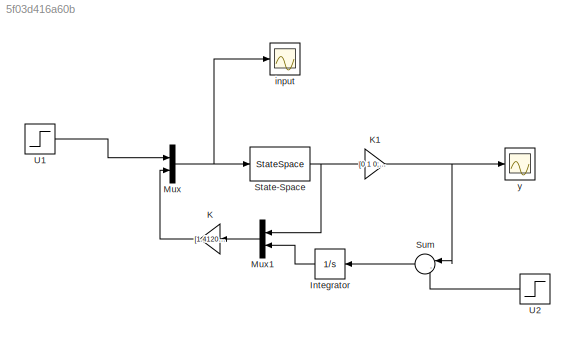
MODEL slx_5f03d416a60b
KIND model
CONFIG AbsTol = auto
CONFIG EnableMultiTasking = off
CONFIG FixedStep = auto
CONFIG MaxStep = auto
CONFIG MinStep = auto
CONFIG RelTol = 1e-3
CONFIG SampleTimeConstraint = Unconstrained
CONFIG Solver = VariableStepAuto
CONFIG SolverName = VariableStepAuto
CONFIG StartTime = 0.0
CONFIG StopTime = 10.0
BLOCK [Integrator] Integrator
  Ports = [1, 1]
BLOCK [Gain] K
  Gain = [1.41205957815341 -3.73155548748854 2.29264297899251\n1 0 ;0.383826453251743 0.0266087256763754 1.64593669568649 0 1]
  Multiplication = Matrix(K*u)
  OutDataTypeStr = Inherit: Inherit via internal rule
  ParamDataTypeStr = Inherit: Inherit via internal rule
  SaturateOnIntegerOverflow = off
BLOCK [Gain] K1
  Gain = [0 1 0;0 0 1]
  Multiplication = Matrix(K*u)
  OutDataTypeStr = Inherit: Inherit via internal rule
  ParamDataTypeStr = Inherit: Inherit via internal rule
  SaturateOnIntegerOverflow = off
BLOCK [Mux] Mux
  DisplayOption = bar
  Inputs = 2
  Ports = [2, 1]
BLOCK [Mux] Mux1
  DisplayOption = bar
  Inputs = 2
  Ports = [2, 1]
BLOCK [StateSpace] State-Space
  A = [-1.7 -0.25 0\n ;   23 -30 20\n;    0 -440 -640]
  B = [5 0\n 5 0;-61 0   -61 0\n  ;0 -550  0 -550]
  C = [1 0 0;0 1 0;0 0 1]
  D = [0 0 0 0;0 0 0 0;0 0 0 0]
  InitialCondition = [1; 100; 200]
  Ports = [1, 1]
BLOCK [Sum] Sum
  IconShape = round
  InputSameDT = off
  Inputs = |-+
  OutDataTypeStr = Inherit: Inherit via internal rule
  Ports = [2, 1]
  SaturateOnIntegerOverflow = off
BLOCK [Step] U1
  After = [-2;5]
  SampleTime = 0
  Time = 10
BLOCK [Step] U2
  After = [100;150]
  SampleTime = 0
  Time = 0
BLOCK [Scope] input
  Floating = off
  NumInputPorts = 1
  Ports = [1]
  ScopeSpecificationString = Simulink.scopes.TimeScopeBlockCfg('CurrentConfiguration', extmgr.ConfigurationSet(extmgr.Configuration('Core','General UI',true),extmgr.Configuration('Core','Source UI',true),extmgr.Configuration('Sources','WiredSimulink',true,'DataLoggingVariableName','ScopeData1'),extmgr.Configuration('Visuals','Time Domain',true,'SerializedDisplays',{struct('MinYLimReal','-1780354.87183','MaxYLimReal','214292.3...<+1793ch>
BLOCK [Scope] y
  Floating = off
  NumInputPorts = 1
  Ports = [1]
  ScopeSpecificationString = Simulink.scopes.TimeScopeBlockCfg('CurrentConfiguration', extmgr.ConfigurationSet(extmgr.Configuration('Core','General UI',true),extmgr.Configuration('Core','Source UI',true),extmgr.Configuration('Sources','WiredSimulink',true),extmgr.Configuration('Visuals','Time Domain',true,'SerializedDisplays',{struct('MinYLimReal','-4864408.92207','MaxYLimReal','541261.85143','YLabelReal','','MinYLimMag','   ...<+1989ch>
LINE Integrator:1 -> Mux1:2
NET K1:1 -> Sum:1, y:1
LINE K:1 -> Mux:2
LINE Mux1:1 -> K:1
NET Mux:1 -> State-Space:1, input:1
NET State-Space:1 -> K1:1, Mux1:1
LINE Sum:1 -> Integrator:1
LINE U1:1 -> Mux:1
LINE U2:1 -> Sum:2
note: NET lines group one-source signal fan-out (src -> all destinations, sorted); 1:1 wires keep LINE
